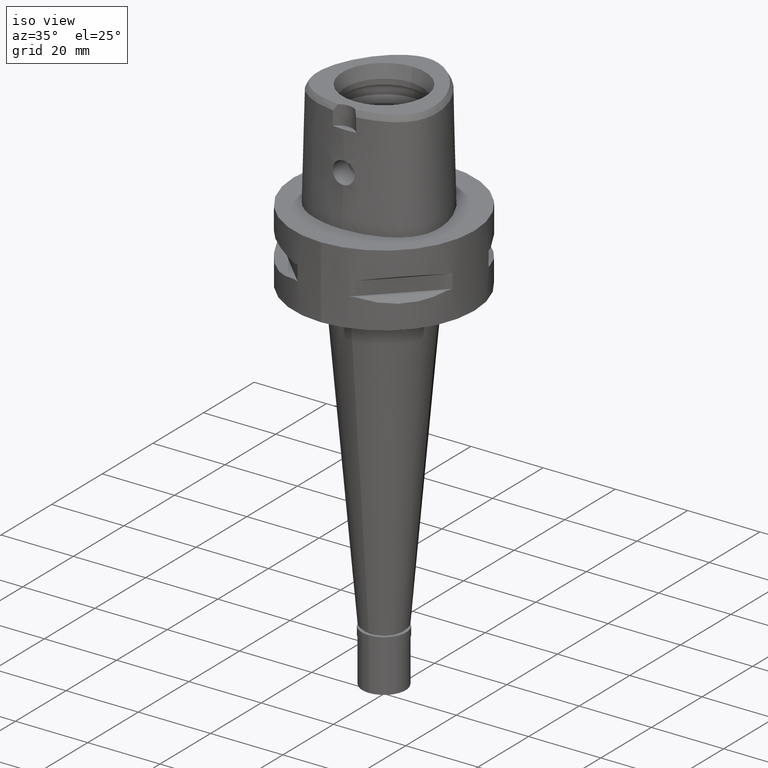
[diagram: clean part render]
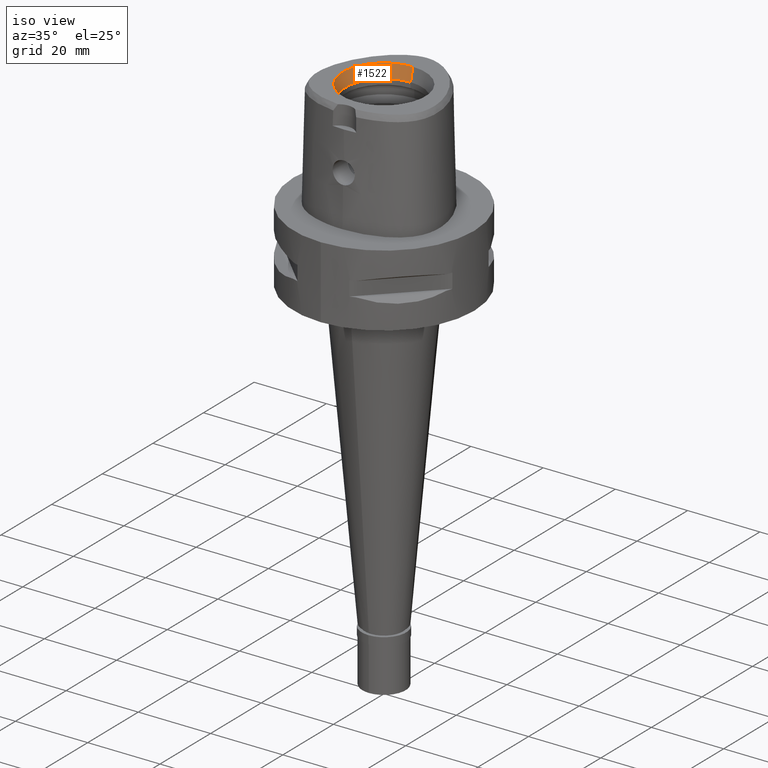
[diagram: same view with one face highlighted and labeled with its STEP entity id]
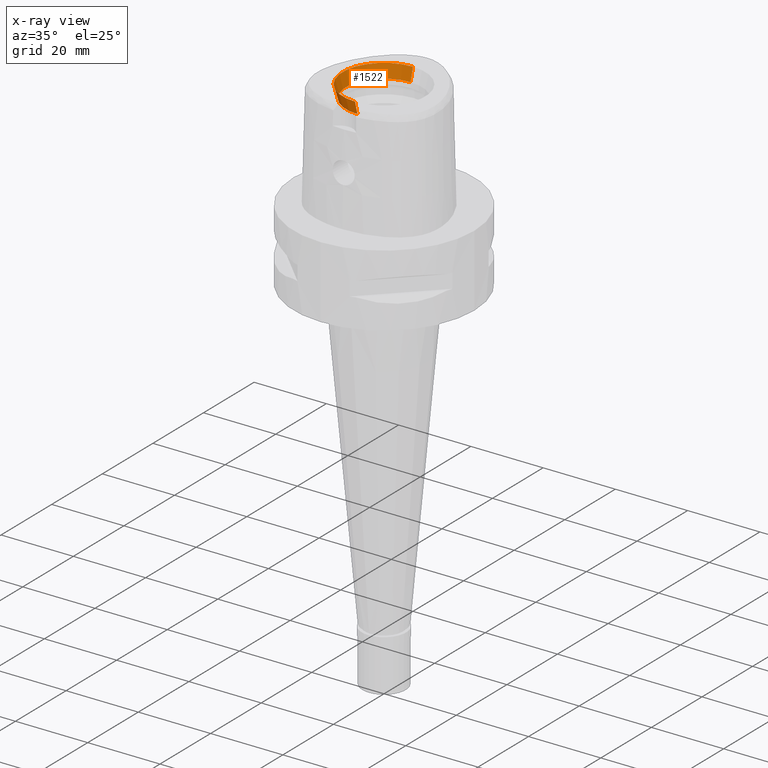
[diagram: x-ray of the same camera — body ghosted, the highlighted face saturated]
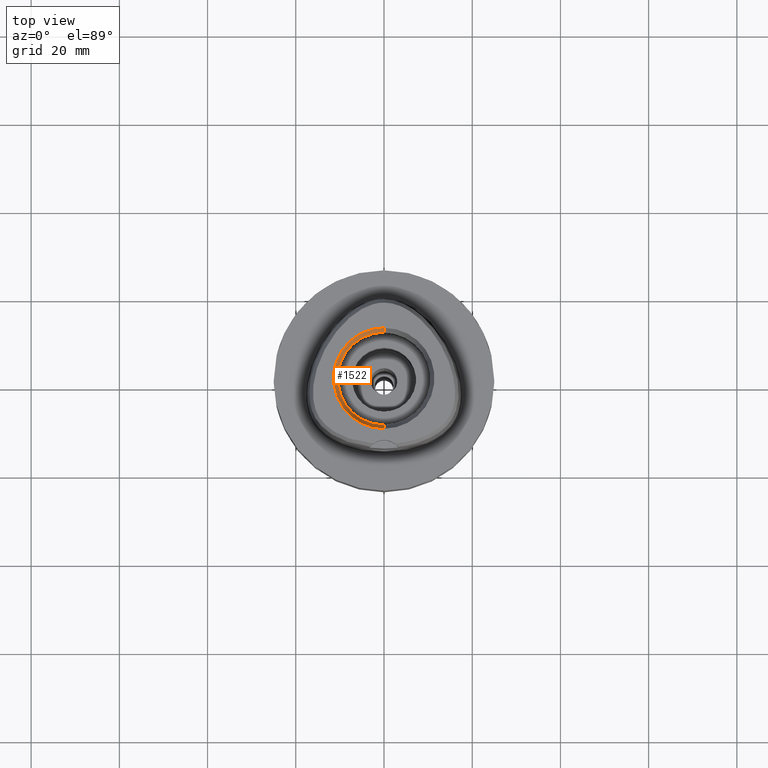
[diagram: same view with one face highlighted and labeled with its STEP entity id]
A machine part, iso view. The second image highlights one B-rep face of the part: STEP entity #1522.
The next image is the same camera in x-ray: the body ghosted, the highlighted face saturated — about 0% of this face is hidden behind the body in this view.
A second angle (top view) of the same face is appended — the face is thin or edge-on in the first view.
In plain terms, the highlighted conical surface has half-angle 15 deg.
Its self-contained STEP definition (entity closure, byte-faithful):
#70 = LINE ( 'NONE', #935, #1171 ) ;
#194 = VERTEX_POINT ( 'NONE', #1591 ) ;
#195 = DIRECTION ( 'NONE',  ( 0.0000000000000000000, 0.0000000000000000000, 1.000000000000000000 ) ) ;
#488 = CARTESIAN_POINT ( 'NONE',  ( 0.0000000000000000000, 10.50000000000000000, 26.50089161528000048 ) ) ;
#611 = CARTESIAN_POINT ( 'NONE',  ( 0.0000000000000000000, 1.570614979474999723E-14, 26.50089161528000048 ) ) ;
#664 = VERTEX_POINT ( 'NONE', #757 ) ;
#757 = CARTESIAN_POINT ( 'NONE',  ( 0.0000000000000000000, -11.43758326592000074, 30.00000000000000000 ) ) ;
#817 = FACE_OUTER_BOUND ( 'NONE', #3536, .T. ) ;
#856 = DIRECTION ( 'NONE',  ( 0.0000000000000000000, 1.000000000000000000, 0.0000000000000000000 ) ) ;
#914 = EDGE_CURVE ( 'NONE', #194, #664, #4420, .T. ) ;
#935 = CARTESIAN_POINT ( 'NONE',  ( 0.0000000000000000000, -10.50000000000000000, 26.50089161528000048 ) ) ;
#950 = EDGE_CURVE ( 'NONE', #4429, #194, #1915, .T. ) ;
#1033 = EDGE_CURVE ( 'NONE', #4429, #4772, #2495, .T. ) ;
#1171 = VECTOR ( 'NONE', #2366, 999.9999999999998863 ) ;
#1193 = AXIS2_PLACEMENT_3D ( 'NONE', #2756, #3805, #1207 ) ;
#1207 = DIRECTION ( 'NONE',  ( 0.0000000000000000000, 1.000000000000000000, 0.0000000000000000000 ) ) ;
#1522 = ADVANCED_FACE ( 'NONE', ( #817 ), #3815, .F. ) ;
#1579 = CARTESIAN_POINT ( 'NONE',  ( 0.0000000000000000000, 1.570614979474999723E-14, 30.00000000000000000 ) ) ;
#1591 = CARTESIAN_POINT ( 'NONE',  ( 0.0000000000000000000, 11.43758326592000074, 30.00000000000000000 ) ) ;
#1599 = ORIENTED_EDGE ( 'NONE', *, *, #3796, .F. ) ;
#1624 = DIRECTION ( 'NONE',  ( 0.0000000000000000000, 0.0000000000000000000, 1.000000000000000000 ) ) ;
#1858 = ORIENTED_EDGE ( 'NONE', *, *, #914, .T. ) ;
#1915 = LINE ( 'NONE', #488, #4038 ) ;
#2366 = DIRECTION ( 'NONE',  ( 0.0000000000000000000, -0.2588190451022134297, 0.9659258262891506908 ) ) ;
#2400 = CARTESIAN_POINT ( 'NONE',  ( 0.0000000000000000000, -10.50000000000000000, 26.50089161528000048 ) ) ;
#2495 = CIRCLE ( 'NONE', #4725, 10.50000000000000000 ) ;
#2644 = ORIENTED_EDGE ( 'NONE', *, *, #950, .T. ) ;
#2756 = CARTESIAN_POINT ( 'NONE',  ( 0.0000000000000000000, 1.570614979474999723E-14, 28.25044580763999846 ) ) ;
#3458 = ORIENTED_EDGE ( 'NONE', *, *, #1033, .F. ) ;
#3536 = EDGE_LOOP ( 'NONE', ( #1599, #3458, #2644, #1858 ) ) ;
#3570 = AXIS2_PLACEMENT_3D ( 'NONE', #1579, #1624, #856 ) ;
#3597 = DIRECTION ( 'NONE',  ( 0.0000000000000000000, 1.000000000000000000, 0.0000000000000000000 ) ) ;
#3796 = EDGE_CURVE ( 'NONE', #4772, #664, #70, .T. ) ;
#3805 = DIRECTION ( 'NONE',  ( 0.0000000000000000000, 0.0000000000000000000, 1.000000000000000000 ) ) ;
#3815 = CONICAL_SURFACE ( 'NONE', #1193, 10.96879163296000037, 0.2617993877991000029 ) ;
#3848 = CARTESIAN_POINT ( 'NONE',  ( 0.0000000000000000000, 10.50000000000000000, 26.50089161528000048 ) ) ;
#4038 = VECTOR ( 'NONE', #4572, 999.9999999999998863 ) ;
#4420 = CIRCLE ( 'NONE', #3570, 11.43758326592000074 ) ;
#4429 = VERTEX_POINT ( 'NONE', #3848 ) ;
#4572 = DIRECTION ( 'NONE',  ( 0.0000000000000000000, 0.2588190451022134297, 0.9659258262891506908 ) ) ;
#4725 = AXIS2_PLACEMENT_3D ( 'NONE', #611, #195, #3597 ) ;
#4772 = VERTEX_POINT ( 'NONE', #2400 ) ;